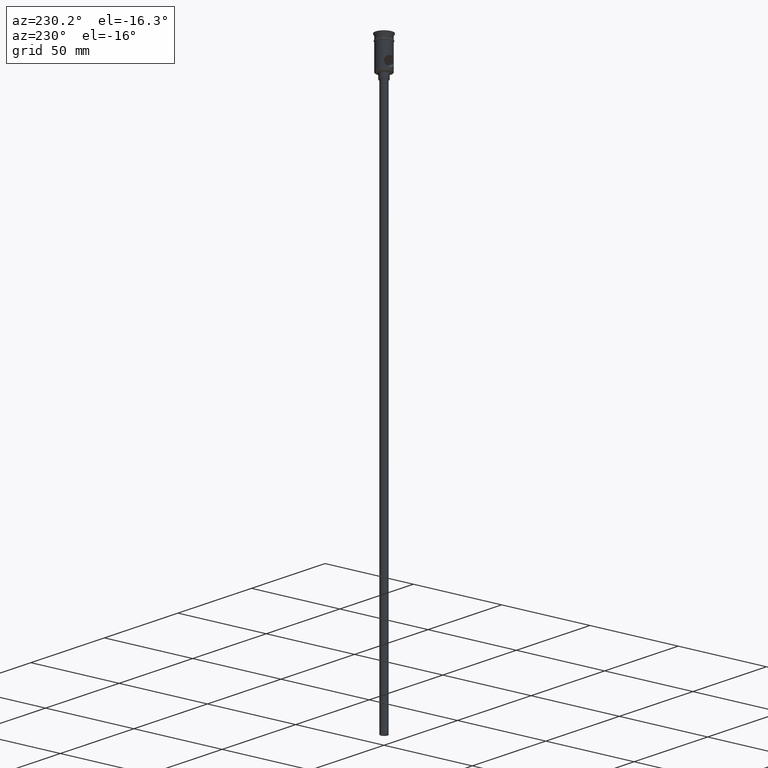
[diagram: clean part render]
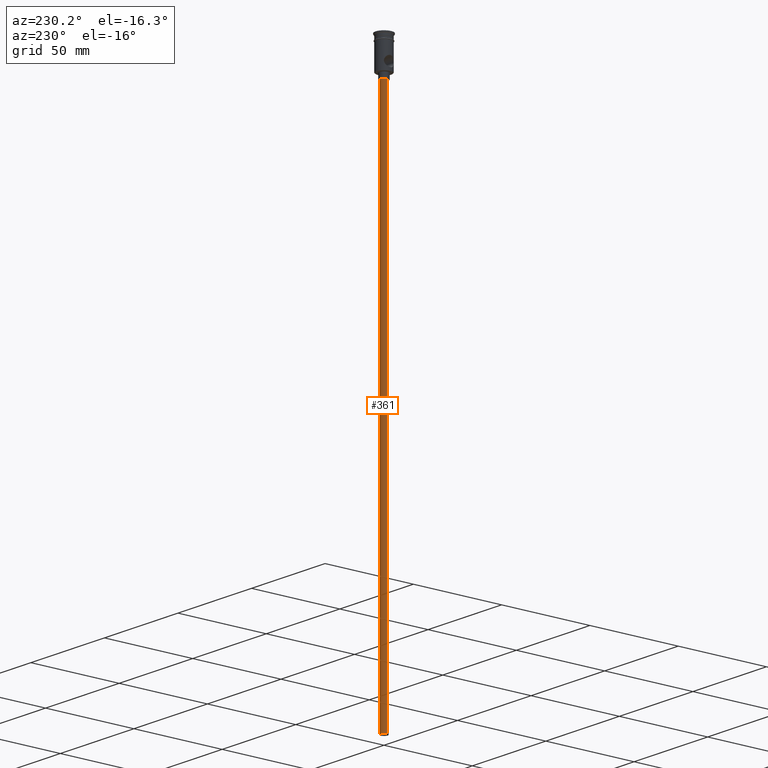
[diagram: same view with one face highlighted and labeled with its STEP entity id]
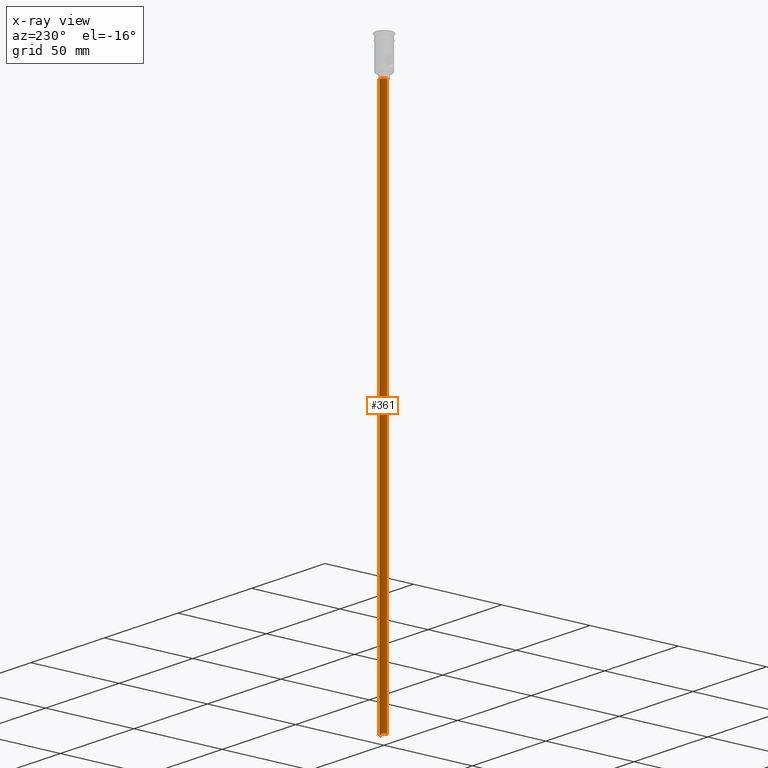
[diagram: x-ray of the same camera — body ghosted, the highlighted face saturated]
A machine part, auxiliary view. The second image highlights one B-rep face of the part: STEP entity #361.
The next image is the same camera in x-ray: the body ghosted, the highlighted face saturated — about 0% of this face is hidden behind the body in this view.
In plain terms, the highlighted cylindrical surface (edge-blend (fillet) strip) has radius 2 mm, axis along (-0, -0, 1).
Its self-contained STEP definition (entity closure, byte-faithful):
#5 = ORIENTED_EDGE ( 'NONE', *, *, #841, .F. ) ;
#69 = EDGE_CURVE ( 'NONE', #720, #216, #1006, .T. ) ;
#174 = DIRECTION ( 'NONE',  ( -0.000000000000000000, -0.000000000000000000, 1.000000000000000000 ) ) ;
#195 = AXIS2_PLACEMENT_3D ( 'NONE', #1403, #710, #404 ) ;
#216 = VERTEX_POINT ( 'NONE', #1013 ) ;
#220 = DIRECTION ( 'NONE',  ( 0.000000000000000000, 0.000000000000000000, -1.000000000000000000 ) ) ;
#245 = CIRCLE ( 'NONE', #777, 2.000000000000000000 ) ;
#280 = DIRECTION ( 'NONE',  ( 0.000000000000000000, 0.000000000000000000, -1.000000000000000000 ) ) ;
#286 = FACE_OUTER_BOUND ( 'NONE', #1397, .T. ) ;
#361 = ADVANCED_FACE ( 'NONE', ( #286 ), #1153, .T. ) ;
#398 = CARTESIAN_POINT ( 'NONE',  ( 0.000000000000000000, 0.000000000000000000, -318.0000000000000000 ) ) ;
#404 = DIRECTION ( 'NONE',  ( 1.000000000000000000, 0.000000000000000000, 0.000000000000000000 ) ) ;
#423 = LINE ( 'NONE', #623, #712 ) ;
#582 = CARTESIAN_POINT ( 'NONE',  ( -2.000000000000000000, 2.449293598294706414E-16, -20.99999999999999645 ) ) ;
#623 = CARTESIAN_POINT ( 'NONE',  ( -2.000000000000000000, 2.449293598294706414E-16, -318.0000000000000000 ) ) ;
#707 = CARTESIAN_POINT ( 'NONE',  ( -2.000000000000000000, 2.449293598294706414E-16, -318.0000000000000000 ) ) ;
#710 = DIRECTION ( 'NONE',  ( -0.000000000000000000, -0.000000000000000000, 1.000000000000000000 ) ) ;
#712 = VECTOR ( 'NONE', #752, 1000.000000000000000 ) ;
#720 = VERTEX_POINT ( 'NONE', #582 ) ;
#726 = CARTESIAN_POINT ( 'NONE',  ( 2.000000000000000000, 0.000000000000000000, -318.0000000000000000 ) ) ;
#752 = DIRECTION ( 'NONE',  ( -0.000000000000000000, -0.000000000000000000, 1.000000000000000000 ) ) ;
#766 = CARTESIAN_POINT ( 'NONE',  ( 2.000000000000000000, 0.000000000000000000, -318.0000000000000000 ) ) ;
#777 = AXIS2_PLACEMENT_3D ( 'NONE', #398, #280, #1375 ) ;
#808 = LINE ( 'NONE', #726, #1083 ) ;
#813 = ORIENTED_EDGE ( 'NONE', *, *, #69, .T. ) ;
#841 = EDGE_CURVE ( 'NONE', #1156, #1366, #245, .T. ) ;
#863 = DIRECTION ( 'NONE',  ( -1.000000000000000000, 0.000000000000000000, 0.000000000000000000 ) ) ;
#897 = EDGE_CURVE ( 'NONE', #1366, #216, #808, .T. ) ;
#1006 = CIRCLE ( 'NONE', #1270, 2.000000000000000000 ) ;
#1013 = CARTESIAN_POINT ( 'NONE',  ( 2.000000000000000000, 0.000000000000000000, -20.99999999999999645 ) ) ;
#1028 = ORIENTED_EDGE ( 'NONE', *, *, #897, .F. ) ;
#1083 = VECTOR ( 'NONE', #174, 1000.000000000000000 ) ;
#1138 = ORIENTED_EDGE ( 'NONE', *, *, #1189, .T. ) ;
#1153 = CYLINDRICAL_SURFACE ( 'NONE', #195, 2.000000000000000000 ) ;
#1156 = VERTEX_POINT ( 'NONE', #707 ) ;
#1189 = EDGE_CURVE ( 'NONE', #1156, #720, #423, .T. ) ;
#1270 = AXIS2_PLACEMENT_3D ( 'NONE', #1299, #220, #863 ) ;
#1299 = CARTESIAN_POINT ( 'NONE',  ( 0.000000000000000000, 0.000000000000000000, -20.99999999999999645 ) ) ;
#1366 = VERTEX_POINT ( 'NONE', #766 ) ;
#1375 = DIRECTION ( 'NONE',  ( -1.000000000000000000, 0.000000000000000000, 0.000000000000000000 ) ) ;
#1397 = EDGE_LOOP ( 'NONE', ( #5, #1138, #813, #1028 ) ) ;
#1403 = CARTESIAN_POINT ( 'NONE',  ( 0.000000000000000000, 0.000000000000000000, -318.0000000000000000 ) ) ;